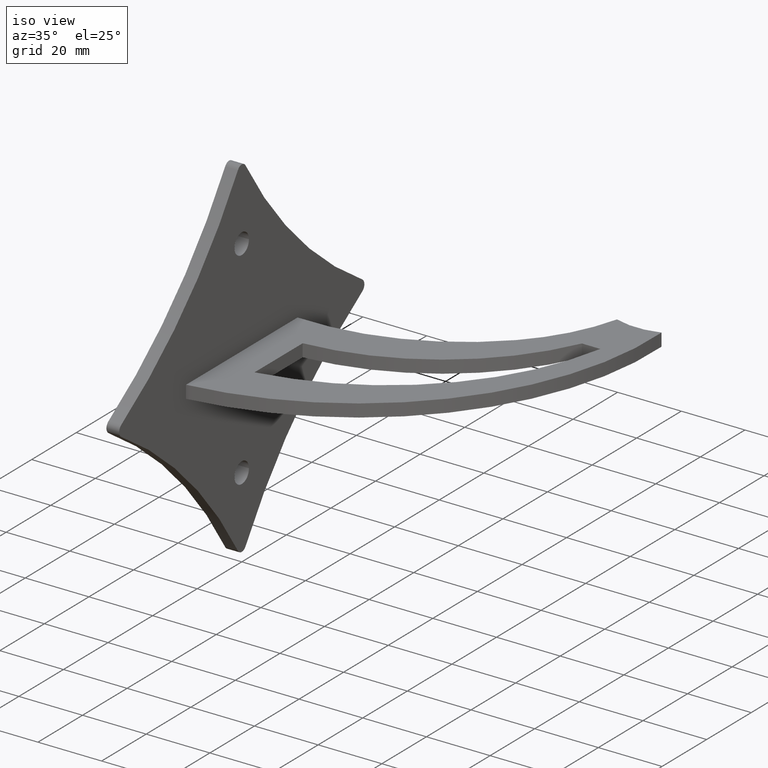
[diagram: clean part render]
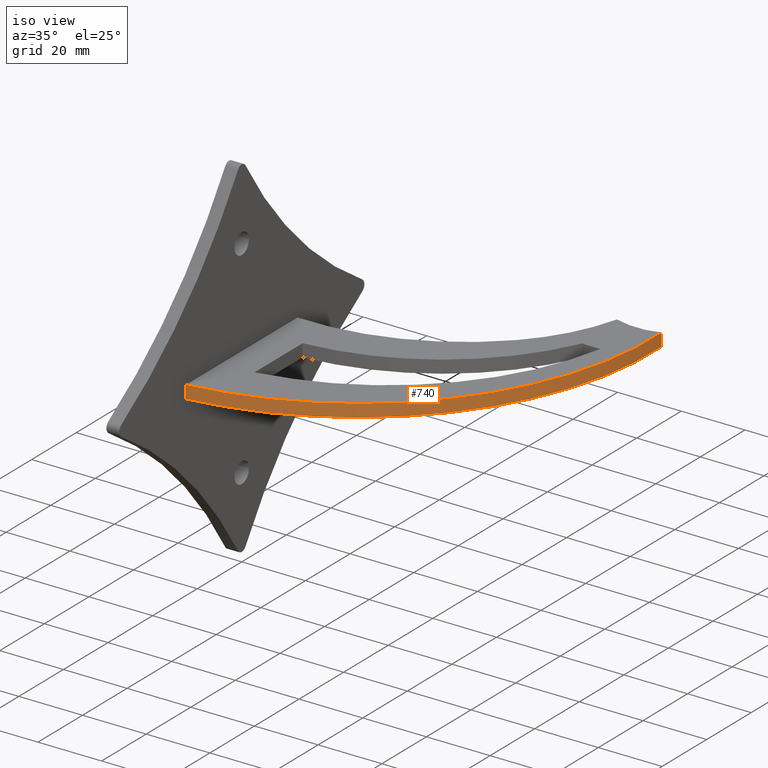
[diagram: same view with one face highlighted and labeled with its STEP entity id]
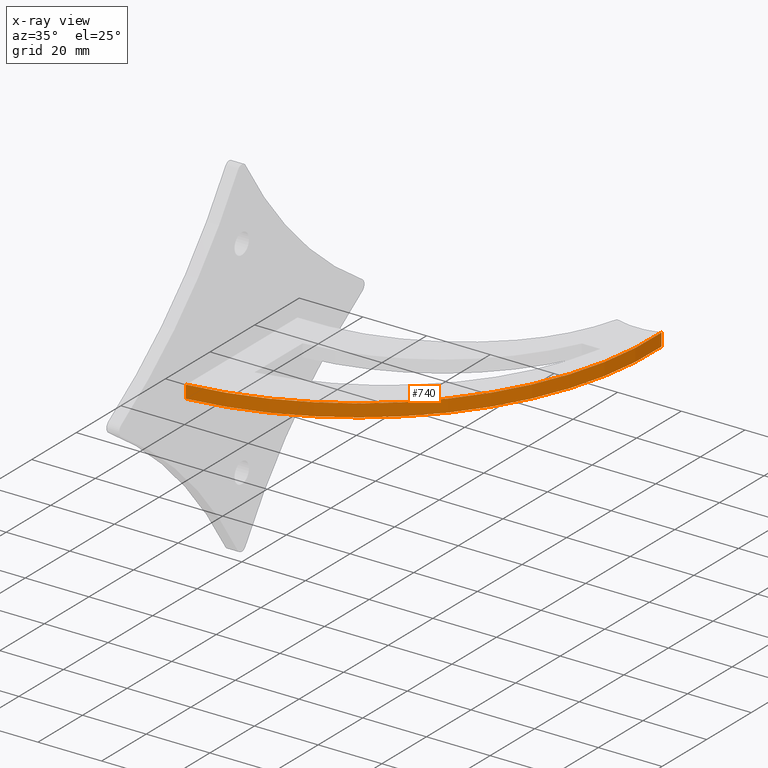
[diagram: x-ray of the same camera — body ghosted, the highlighted face saturated]
A machine part, iso view. The second image highlights one B-rep face of the part: STEP entity #740.
The next image is the same camera in x-ray: the body ghosted, the highlighted face saturated — about 0% of this face is hidden behind the body in this view.
In plain terms, the highlighted cylindrical surface (partial cylindrical patch) has radius 92 mm, axis along (-0, -0, -1).
Its self-contained STEP definition (entity closure, byte-faithful):
#174 = CARTESIAN_POINT ( 'NONE',  ( -9.878794471127335441, 66.46807869304582539, -2.000000000000000000 ) ) ;
#437 = DIRECTION ( 'NONE',  ( -0.000000000000000000, -0.000000000000000000, -1.000000000000000000 ) ) ;
#740 = ADVANCED_FACE ( 'NONE', ( #8606 ), #6175, .T. ) ;
#1062 = DIRECTION ( 'NONE',  ( -0.000000000000000000, -0.000000000000000000, -1.000000000000000000 ) ) ;
#1122 = CARTESIAN_POINT ( 'NONE',  ( 81.99999999999997158, 71.18900302333739205, -2.000000000000000000 ) ) ;
#1190 = AXIS2_PLACEMENT_3D ( 'NONE', #174, #3898, #5605 ) ;
#2007 = VERTEX_POINT ( 'NONE', #1122 ) ;
#2134 = EDGE_CURVE ( 'NONE', #10109, #2007, #9992, .T. ) ;
#2165 = EDGE_CURVE ( 'NONE', #9766, #10109, #10559, .T. ) ;
#2642 = ORIENTED_EDGE ( 'NONE', *, *, #2134, .F. ) ;
#2899 = ORIENTED_EDGE ( 'NONE', *, *, #2165, .F. ) ;
#3054 = DIRECTION ( 'NONE',  ( -0.000000000000000000, 0.000000000000000000, 1.000000000000000000 ) ) ;
#3898 = DIRECTION ( 'NONE',  ( -0.000000000000000000, 0.000000000000000000, 1.000000000000000000 ) ) ;
#3917 = CARTESIAN_POINT ( 'NONE',  ( -1.998139615876600116E-12, -24.99999999999961986, 2.000000000000000000 ) ) ;
#4115 = CARTESIAN_POINT ( 'NONE',  ( 81.99999999999997158, 71.18900302333739205, 2.000000000000000000 ) ) ;
#4392 = AXIS2_PLACEMENT_3D ( 'NONE', #4959, #3054, #11367 ) ;
#4466 = EDGE_CURVE ( 'NONE', #9766, #7439, #10250, .T. ) ;
#4959 = CARTESIAN_POINT ( 'NONE',  ( -9.878794471127335441, 66.46807869304582539, 2.000000000000000000 ) ) ;
#5403 = VECTOR ( 'NONE', #437, 1000.000000000000000 ) ;
#5605 = DIRECTION ( 'NONE',  ( 1.000000000000000000, 0.000000000000000000, 0.000000000000000000 ) ) ;
#5667 = DIRECTION ( 'NONE',  ( -1.000000000000000000, 0.000000000000000000, 0.000000000000000000 ) ) ;
#6175 = CYLINDRICAL_SURFACE ( 'NONE', #8544, 91.99999999999941735 ) ;
#6405 = EDGE_CURVE ( 'NONE', #7439, #2007, #10502, .T. ) ;
#6487 = ORIENTED_EDGE ( 'NONE', *, *, #4466, .T. ) ;
#7439 = VERTEX_POINT ( 'NONE', #8929 ) ;
#7636 = CARTESIAN_POINT ( 'NONE',  ( 81.99999999999997158, 71.18900302333739205, 2.000000000000000000 ) ) ;
#7950 = CARTESIAN_POINT ( 'NONE',  ( 2.220446049250313081E-13, -24.99999999999879918, 2.000000000000000000 ) ) ;
#7989 = ORIENTED_EDGE ( 'NONE', *, *, #6405, .T. ) ;
#8544 = AXIS2_PLACEMENT_3D ( 'NONE', #11032, #1062, #5667 ) ;
#8606 = FACE_OUTER_BOUND ( 'NONE', #11505, .T. ) ;
#8929 = CARTESIAN_POINT ( 'NONE',  ( -1.998401444325186453E-12, -24.99999999999879918, -2.000000000000000000 ) ) ;
#9766 = VERTEX_POINT ( 'NONE', #3917 ) ;
#9992 = LINE ( 'NONE', #7636, #5403 ) ;
#10109 = VERTEX_POINT ( 'NONE', #4115 ) ;
#10250 = LINE ( 'NONE', #7950, #10374 ) ;
#10374 = VECTOR ( 'NONE', #11662, 1000.000000000000000 ) ;
#10502 = CIRCLE ( 'NONE', #1190, 91.99999999999938893 ) ;
#10559 = CIRCLE ( 'NONE', #4392, 91.99999999999938893 ) ;
#11032 = CARTESIAN_POINT ( 'NONE',  ( -9.878794471127335441, 66.46807869304582539, 2.000000000000000000 ) ) ;
#11367 = DIRECTION ( 'NONE',  ( 1.000000000000000000, 0.000000000000000000, 0.000000000000000000 ) ) ;
#11505 = EDGE_LOOP ( 'NONE', ( #7989, #2642, #2899, #6487 ) ) ;
#11662 = DIRECTION ( 'NONE',  ( -0.000000000000000000, -0.000000000000000000, -1.000000000000000000 ) ) ;